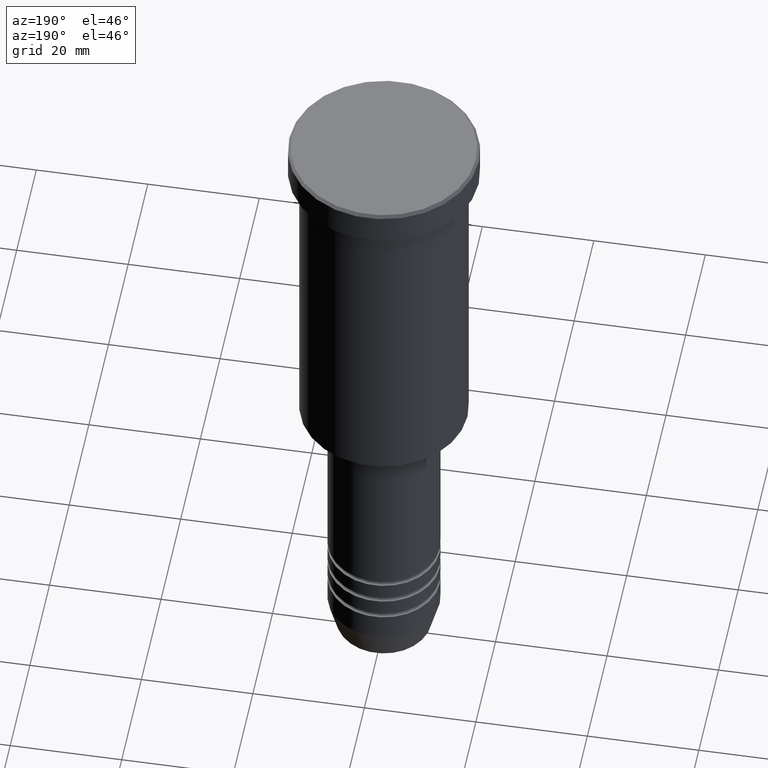
[diagram: clean part render]
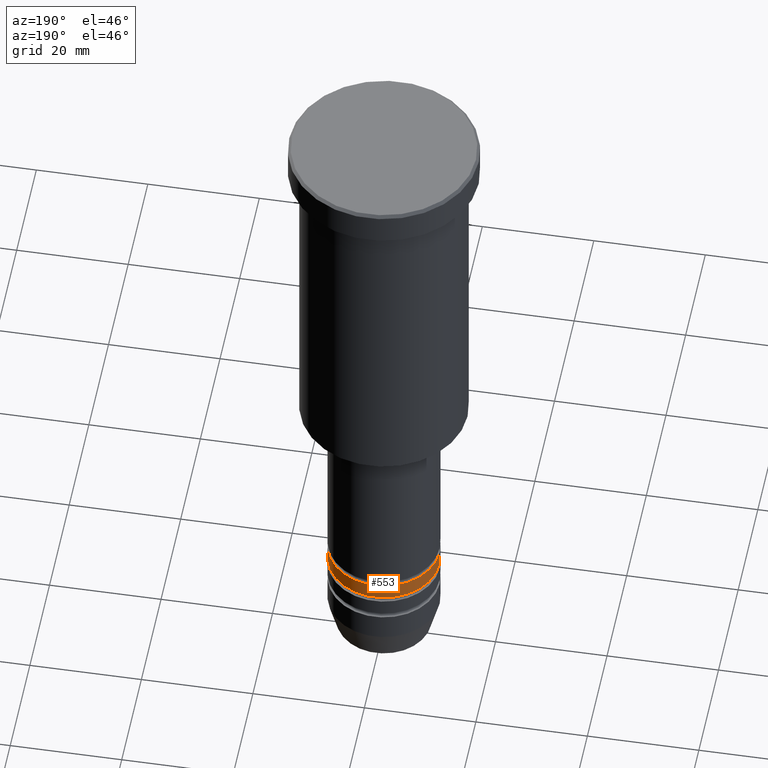
[diagram: same view with one face highlighted and labeled with its STEP entity id]
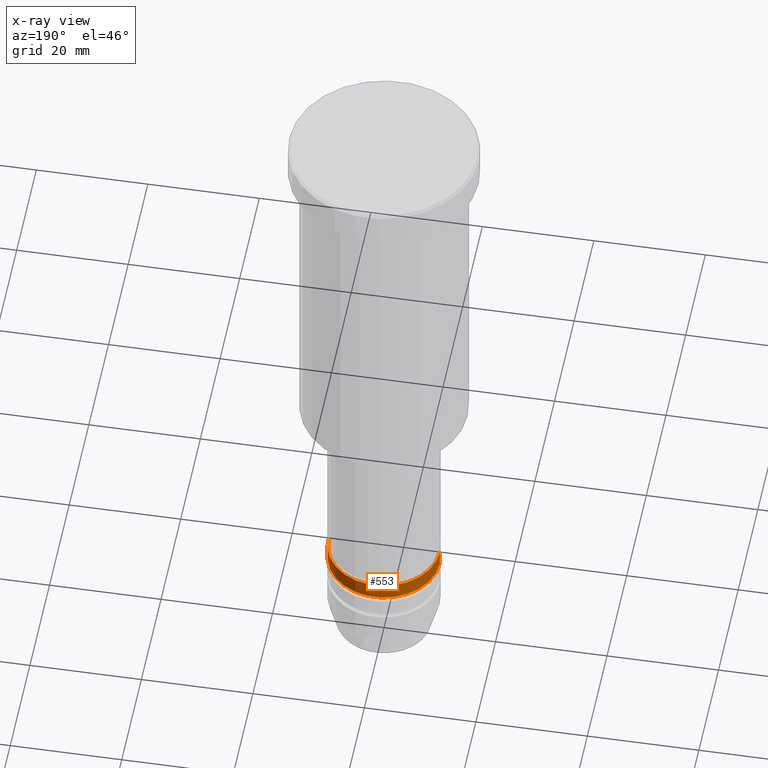
[diagram: x-ray of the same camera — body ghosted, the highlighted face saturated]
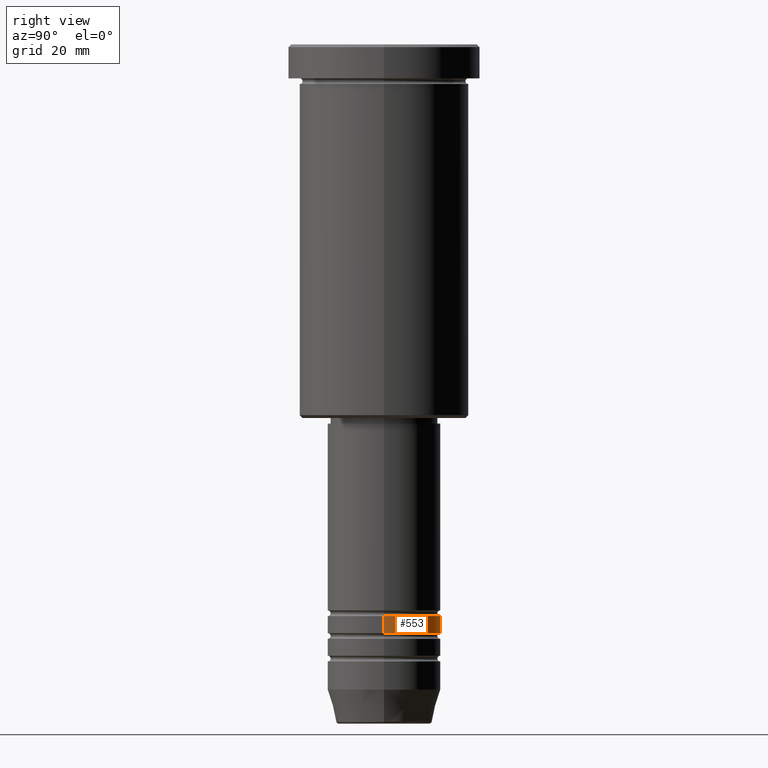
[diagram: same view with one face highlighted and labeled with its STEP entity id]
A machine part, auxiliary view. The second image highlights one B-rep face of the part: STEP entity #553.
The next image is the same camera in x-ray: the body ghosted, the highlighted face saturated — about 0% of this face is hidden behind the body in this view.
A second angle (right view) of the same face is appended — the face is thin or edge-on in the first view.
In plain terms, the highlighted cylindrical surface (partial cylindrical patch) has radius 10 mm, axis along (-0, -0, 1).
Its self-contained STEP definition (entity closure, byte-faithful):
#40 = ORIENTED_EDGE ( 'NONE', *, *, #933, .F. ) ;
#71 = CARTESIAN_POINT ( 'NONE',  ( 10.00000000000000178, 0.000000000000000000, -103.9999999999999858 ) ) ;
#79 = CARTESIAN_POINT ( 'NONE',  ( 10.00000000000000000, 0.000000000000000000, -100.9999999999999716 ) ) ;
#124 = CARTESIAN_POINT ( 'NONE',  ( -10.00000000000000178, 1.224646799147353454E-15, 0.000000000000000000 ) ) ;
#180 = CARTESIAN_POINT ( 'NONE',  ( -10.00000000000000000, 1.224646799147353256E-15, -100.9999999999999716 ) ) ;
#205 = CARTESIAN_POINT ( 'NONE',  ( 0.000000000000000000, 0.000000000000000000, 0.000000000000000000 ) ) ;
#249 = ORIENTED_EDGE ( 'NONE', *, *, #1089, .F. ) ;
#304 = EDGE_CURVE ( 'NONE', #675, #785, #1030, .T. ) ;
#310 = CIRCLE ( 'NONE', #392, 10.00000000000000178 ) ;
#326 = DIRECTION ( 'NONE',  ( -0.000000000000000000, -0.000000000000000000, 1.000000000000000000 ) ) ;
#345 = VERTEX_POINT ( 'NONE', #79 ) ;
#368 = VECTOR ( 'NONE', #326, 1000.000000000000000 ) ;
#371 = AXIS2_PLACEMENT_3D ( 'NONE', #205, #929, #579 ) ;
#383 = EDGE_CURVE ( 'NONE', #645, #675, #310, .T. ) ;
#392 = AXIS2_PLACEMENT_3D ( 'NONE', #455, #715, #462 ) ;
#415 = LINE ( 'NONE', #1045, #368 ) ;
#425 = DIRECTION ( 'NONE',  ( 1.000000000000000000, 0.000000000000000000, 0.000000000000000000 ) ) ;
#448 = CIRCLE ( 'NONE', #860, 10.00000000000000000 ) ;
#455 = CARTESIAN_POINT ( 'NONE',  ( 0.000000000000000000, 0.000000000000000000, -103.9999999999999858 ) ) ;
#462 = DIRECTION ( 'NONE',  ( 1.000000000000000000, 0.000000000000000000, 0.000000000000000000 ) ) ;
#553 = ADVANCED_FACE ( 'NONE', ( #1123 ), #773, .T. ) ;
#579 = DIRECTION ( 'NONE',  ( 1.000000000000000000, 0.000000000000000000, 0.000000000000000000 ) ) ;
#592 = ORIENTED_EDGE ( 'NONE', *, *, #383, .T. ) ;
#622 = VECTOR ( 'NONE', #823, 1000.000000000000000 ) ;
#645 = VERTEX_POINT ( 'NONE', #71 ) ;
#663 = ORIENTED_EDGE ( 'NONE', *, *, #304, .T. ) ;
#675 = VERTEX_POINT ( 'NONE', #953 ) ;
#715 = DIRECTION ( 'NONE',  ( -0.000000000000000000, -0.000000000000000000, 1.000000000000000000 ) ) ;
#726 = CARTESIAN_POINT ( 'NONE',  ( 0.000000000000000000, 0.000000000000000000, -100.9999999999999716 ) ) ;
#773 = CYLINDRICAL_SURFACE ( 'NONE', #371, 10.00000000000000178 ) ;
#785 = VERTEX_POINT ( 'NONE', #180 ) ;
#795 = EDGE_LOOP ( 'NONE', ( #592, #663, #249, #40 ) ) ;
#823 = DIRECTION ( 'NONE',  ( -0.000000000000000000, -0.000000000000000000, 1.000000000000000000 ) ) ;
#860 = AXIS2_PLACEMENT_3D ( 'NONE', #726, #1182, #425 ) ;
#929 = DIRECTION ( 'NONE',  ( -0.000000000000000000, -0.000000000000000000, 1.000000000000000000 ) ) ;
#933 = EDGE_CURVE ( 'NONE', #645, #345, #415, .T. ) ;
#953 = CARTESIAN_POINT ( 'NONE',  ( -10.00000000000000178, 1.224646799147353454E-15, -103.9999999999999858 ) ) ;
#1030 = LINE ( 'NONE', #124, #622 ) ;
#1045 = CARTESIAN_POINT ( 'NONE',  ( 10.00000000000000178, 0.000000000000000000, 0.000000000000000000 ) ) ;
#1089 = EDGE_CURVE ( 'NONE', #345, #785, #448, .T. ) ;
#1123 = FACE_OUTER_BOUND ( 'NONE', #795, .T. ) ;
#1182 = DIRECTION ( 'NONE',  ( -0.000000000000000000, -0.000000000000000000, 1.000000000000000000 ) ) ;